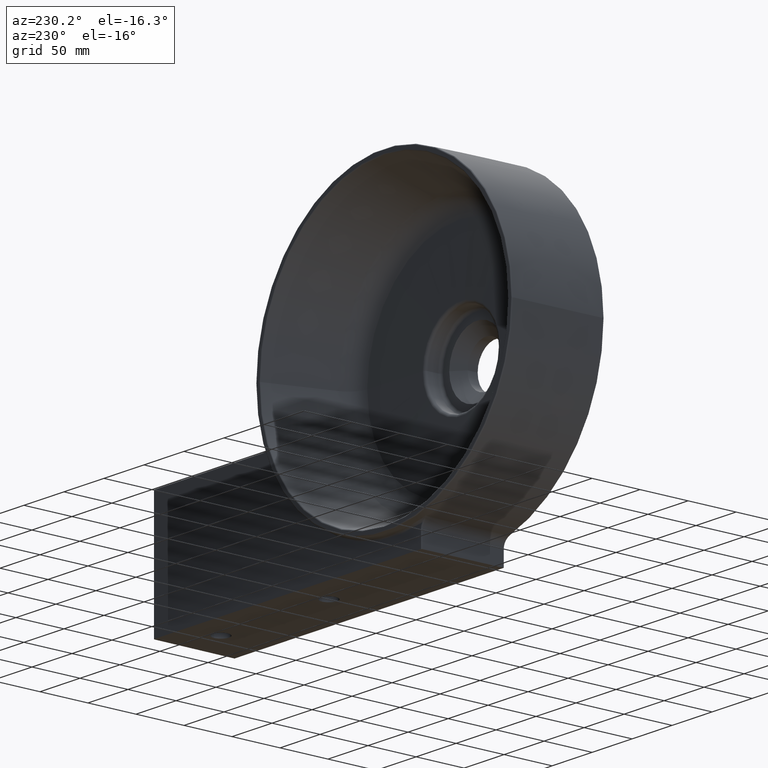
[diagram: clean part render]
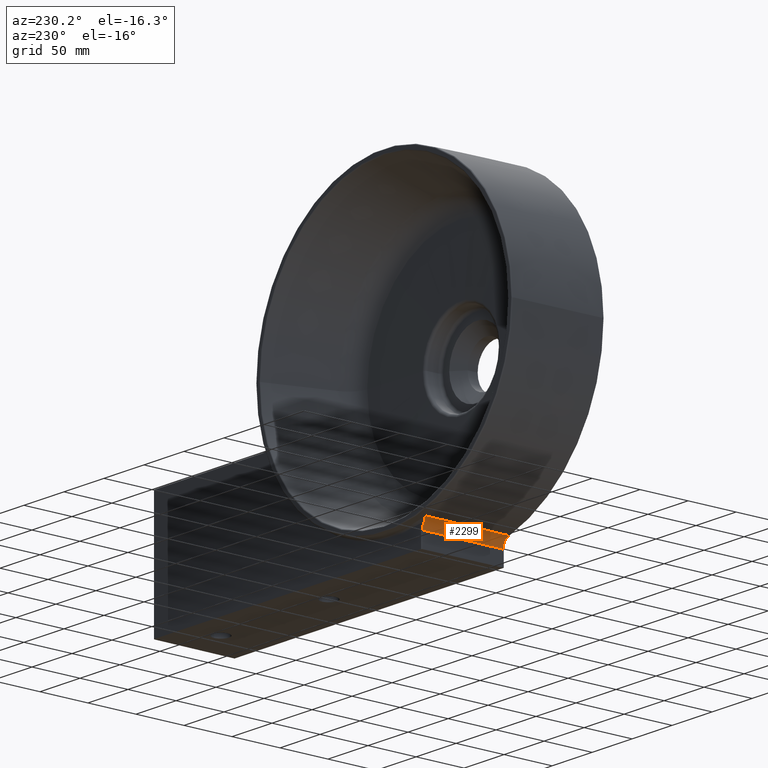
[diagram: same view with one face highlighted and labeled with its STEP entity id]
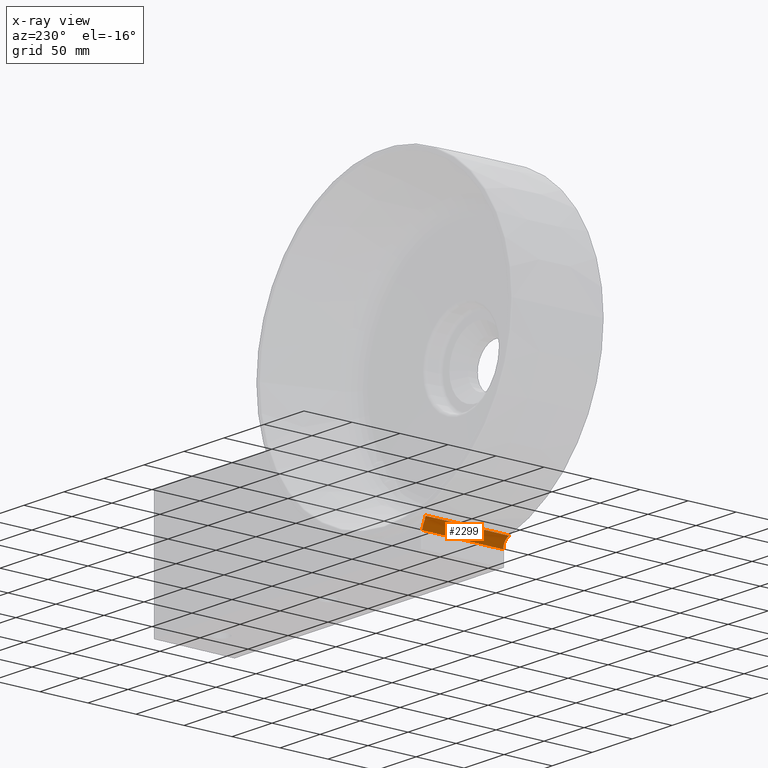
[diagram: x-ray of the same camera — body ghosted, the highlighted face saturated]
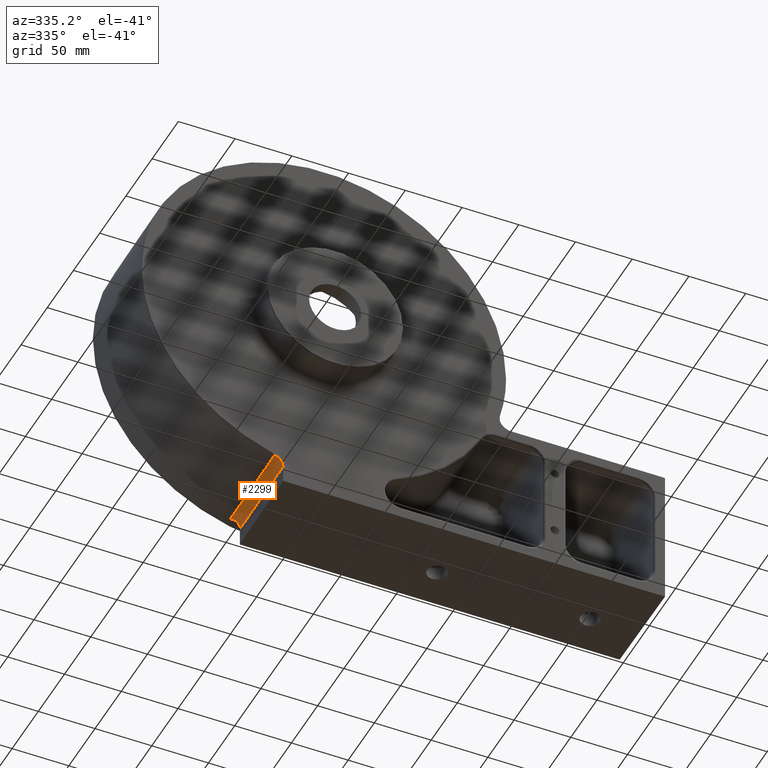
[diagram: same view with one face highlighted and labeled with its STEP entity id]
A machine part, auxiliary view. The second image highlights one B-rep face of the part: STEP entity #2299.
The next image is the same camera in x-ray: the body ghosted, the highlighted face saturated — about 0% of this face is hidden behind the body in this view.
A second angle (auxiliary view) of the same face is appended — the face is thin or edge-on in the first view.
In plain terms, the highlighted face is a freeform B-spline surface patch.
Its self-contained STEP definition (entity closure, byte-faithful):
#117 = CARTESIAN_POINT ( 'NONE',  ( -34.97817047336204155, 109.3008069631592463, -164.0005494587681767 ) ) ;
#175 = CARTESIAN_POINT ( 'NONE',  ( -42.87444206336256514, 44.46353439593922730, -154.7947858642535550 ) ) ;
#366 = CARTESIAN_POINT ( 'NONE',  ( -36.78456986317082311, 105.8103598929374414, -158.3248963485769139 ) ) ;
#383 = CARTESIAN_POINT ( 'NONE',  ( -35.73782206330182731, 22.25335670337503657, -156.9792501386635024 ) ) ;
#428 = CARTESIAN_POINT ( 'NONE',  ( -42.57514108303320199, 80.30179165611281178, -154.5530370409089755 ) ) ;
#441 = CARTESIAN_POINT ( 'NONE',  ( -42.33734794164194426, 108.7819379017567201, -154.3605325915483206 ) ) ;
#452 = CARTESIAN_POINT ( 'NONE',  ( -42.33301567261197818, 109.3008069631593315, -154.3570254617692115 ) ) ;
#479 = CARTESIAN_POINT ( 'NONE',  ( -42.68937438647490268, 66.62331348628256933, -154.6453173011169326 ) ) ;
#540 = ORIENTED_EDGE ( 'NONE', *, *, #756, .F. ) ;
#556 = CARTESIAN_POINT ( 'NONE',  ( -42.06326360140933929, 108.6124516774507640, -154.4372409831999846 ) ) ;
#604 = CARTESIAN_POINT ( 'NONE',  ( -35.49447171987617367, 50.13854406502467498, -164.3939499997256064 ) ) ;
#728 = CARTESIAN_POINT ( 'NONE',  ( -42.81731537663141296, 51.30277407393342770, -154.7487145481274524 ) ) ;
#756 = EDGE_CURVE ( 'NONE', #1230, #3044, #2183, .T. ) ;
#896 = B_SPLINE_CURVE_WITH_KNOTS ( 'NONE', 3,
 ( #3853, #1916, #1634, #2884, #1002, #3795, #1961, #981, #1582, #3156 ),
 .UNSPECIFIED., .F., .F.,
 ( 4, 2, 2, 2, 4 ),
 ( 0.0000000000000000000, 0.001428692405881586440, 0.002857384811763172879, 0.004286077217644759102, 0.005714769623526345758 ),
 .UNSPECIFIED. ) ;
#917 = CARTESIAN_POINT ( 'NONE',  ( -35.73738225065834229, 22.30375424050174615, -164.5785603973745594 ) ) ;
#928 = ORIENTED_EDGE ( 'NONE', *, *, #2881, .F. ) ;
#981 = CARTESIAN_POINT ( 'NONE',  ( -35.04333116067208920, 105.8087248757224188, -163.0655181833680274 ) ) ;
#997 = CARTESIAN_POINT ( 'NONE',  ( -35.23124104600864115, 80.30179165613371595, -164.1935592867732794 ) ) ;
#1002 = CARTESIAN_POINT ( 'NONE',  ( -35.54886515321889107, 105.8098267347751289, -160.7466239143528242 ) ) ;
#1047 = ORIENTED_EDGE ( 'NONE', *, *, #2059, .T. ) ;
#1079 = CARTESIAN_POINT ( 'NONE',  ( -42.44867017761611550, 95.44937373072748699, -154.4506312328651347 ) ) ;
#1098 = CARTESIAN_POINT ( 'NONE',  ( -45.73700148130004806, 22.39101959548549203, -164.5785603973745310 ) ) ;
#1199 = EDGE_CURVE ( 'NONE', #3291, #1831, #3556, .T. ) ;
#1230 = VERTEX_POINT ( 'NONE', #1849 ) ;
#1284 = EDGE_LOOP ( 'NONE', ( #540, #1047, #3368, #2465, #928 ) ) ;
#1378 = CARTESIAN_POINT ( 'NONE',  ( -34.97861339152225923, 109.2500535690625725, -156.3744582164801784 ) ) ;
#1440 = CARTESIAN_POINT ( 'NONE',  ( -43.05953790363872713, 22.30375424050182787, -154.9440612641493544 ) ) ;
#1520 = CARTESIAN_POINT ( 'NONE',  ( -41.25469435271084961, 108.1057935947167437, -154.7275797981760093 ) ) ;
#1580 = CARTESIAN_POINT ( 'NONE',  ( -37.38229266956683006, 105.9545746354741311, -157.5449066424794182 ) ) ;
#1582 = CARTESIAN_POINT ( 'NONE',  ( -35.00864792788315327, 105.8084365902086859, -163.5442575244578620 ) ) ;
#1615 = CARTESIAN_POINT ( 'NONE',  ( -36.97710375397750937, 105.8433133704361921, -158.0565923567228026 ) ) ;
#1617 = CARTESIAN_POINT ( 'NONE',  ( -35.00865071246920479, 105.8081175082510299, -164.0237942346884950 ) ) ;
#1634 = CARTESIAN_POINT ( 'NONE',  ( -36.11386201882148583, 105.8102102971107996, -159.4292619568583689 ) ) ;
#1649 = CARTESIAN_POINT ( 'NONE',  ( -35.48431163851033432, 51.30277407394054023, -164.3862284055785778 ) ) ;
#1671 = CARTESIAN_POINT ( 'NONE',  ( -43.05953790363873424, 22.30375424050182787, -154.9440612641493544 ) ) ;
#1727 = B_SPLINE_CURVE_WITH_KNOTS ( 'NONE', 3,
 ( #2120, #556, #1821, #1520, #1938, #3193, #3470, #1898, #3830, #3154, #1580, #1615, #366, #4084 ),
 .UNSPECIFIED., .F., .F.,
 ( 4, 2, 2, 2, 2, 2, 4 ),
 ( -1.928415136391667750E-05, 0.0009744901388965044892, 0.001968264429156925659, 0.003955813009677761928, 0.005943361590198599498, 0.006937135880459010043, 0.007930910170719422322 ),
 .UNSPECIFIED. ) ;
#1776 = EDGE_CURVE ( 'NONE', #3688, #1831, #896, .T. ) ;
#1821 = CARTESIAN_POINT ( 'NONE',  ( -41.79000517538840143, 108.4415684509560123, -154.5265600558129222 ) ) ;
#1831 = VERTEX_POINT ( 'NONE', #1617 ) ;
#1842 = CARTESIAN_POINT ( 'NONE',  ( -43.05953790363872713, 22.30375424050182787, -154.9440612641493544 ) ) ;
#1849 = CARTESIAN_POINT ( 'NONE',  ( -42.33734794164194426, 108.7819379017567201, -154.3605325915483206 ) ) ;
#1898 = CARTESIAN_POINT ( 'NONE',  ( -38.72615686677245606, 106.5715992519598529, -156.2103475595262125 ) ) ;
#1916 = CARTESIAN_POINT ( 'NONE',  ( -36.34254147255855116, 105.8102890880982443, -159.0109671531263587 ) ) ;
#1938 = CARTESIAN_POINT ( 'NONE',  ( -40.99088294197302673, 107.9398007660776670, -154.8397669254214293 ) ) ;
#1961 = CARTESIAN_POINT ( 'NONE',  ( -35.17908322603751259, 105.8092322634866065, -162.1249577934193269 ) ) ;
#2039 = CARTESIAN_POINT ( 'NONE',  ( -42.50433516190589245, 88.78309149889236096, -154.4956541137780164 ) ) ;
#2059 = EDGE_CURVE ( 'NONE', #1230, #3688, #1727, .T. ) ;
#2078 = CARTESIAN_POINT ( 'NONE',  ( -35.73738225065834229, 22.30375424050174615, -164.5785603973745594 ) ) ;
#2120 = CARTESIAN_POINT ( 'NONE',  ( -42.33734794164194426, 108.7819379017567201, -154.3605325915483206 ) ) ;
#2176 = CARTESIAN_POINT ( 'NONE',  ( -35.00865071246920479, 105.8081175082510299, -164.0237942346884950 ) ) ;
#2183 = B_SPLINE_CURVE_WITH_KNOTS ( 'NONE', 3,
 ( #441, #2997, #1079, #2039, #479, #175, #1440 ),
 .UNSPECIFIED., .F., .F.,
 ( 4, 3, 4 ),
 ( 2.775557561562891351E-17, 0.02000000000007151266, 0.08648316780731921116 ),
 .UNSPECIFIED. ) ;
#2299 = ADVANCED_FACE ( 'NONE', ( #2920 ), #3340, .F. ) ;
#2465 = ORIENTED_EDGE ( 'NONE', *, *, #1199, .F. ) ;
#2684 = CARTESIAN_POINT ( 'NONE',  ( -35.48464416659616205, 51.26467009875702274, -156.7779520022562281 ) ) ;
#2881 = EDGE_CURVE ( 'NONE', #3044, #3291, #3250, .T. ) ;
#2884 = CARTESIAN_POINT ( 'NONE',  ( -35.71737193866101023, 105.8099797951367407, -160.2956199086225126 ) ) ;
#2920 = FACE_OUTER_BOUND ( 'NONE', #1284, .T. ) ;
#2992 = DIRECTION ( 'NONE',  ( 0.008726343586924856927, 0.9999399321901887294, 0.006631963441090510739 ) ) ;
#2997 = CARTESIAN_POINT ( 'NONE',  ( -42.39300776821617234, 102.1156558651314583, -154.4055907388219282 ) ) ;
#3044 = VERTEX_POINT ( 'NONE', #1842 ) ;
#3154 = CARTESIAN_POINT ( 'NONE',  ( -37.59555342693103341, 106.0334321785384759, -157.3009486264955115 ) ) ;
#3156 = CARTESIAN_POINT ( 'NONE',  ( -35.00865071246920479, 105.8081175082510299, -164.0237942346884950 ) ) ;
#3187 = AXIS2_PLACEMENT_3D ( 'NONE', #1098, #2992, #3942 ) ;
#3193 = CARTESIAN_POINT ( 'NONE',  ( -40.20949218918405421, 107.4510529300411292, -155.2130385539687722 ) ) ;
#3250 = CIRCLE ( 'NONE', #3187, 10.00000000000000178 ) ;
#3257 = CARTESIAN_POINT ( 'NONE',  ( -35.23157345182573152, 80.26370170079587751, -156.5763549128056127 ) ) ;
#3291 = VERTEX_POINT ( 'NONE', #2078 ) ;
#3340 =( BOUNDED_SURFACE ( )  B_SPLINE_SURFACE ( 3, 2, ( 
 ( #3525, #383, #1671 ),
 ( #1649, #2684, #728 ),
 ( #997, #3257, #428 ),
 ( #117, #1378, #452 ) ),
 .UNSPECIFIED., .F., .F., .F. ) 
 B_SPLINE_SURFACE_WITH_KNOTS ( ( 4, 4 ),
 ( 3, 3 ),
 ( 0.0000000000000000000, 0.08700228544546993736 ),
 ( 0.0000000000000000000, 1.000000000000000000 ),
 .UNSPECIFIED. ) 
 GEOMETRIC_REPRESENTATION_ITEM ( )  RATIONAL_B_SPLINE_SURFACE ( (
 ( 1.000000000000000000, 0.7961822389462896998, 1.000000000000000000),
 ( 1.000000000000000000, 0.7958416236935826893, 1.000000000000000000),
 ( 1.000000000000000000, 0.7954992760388452933, 1.000000000000000000),
 ( 1.000000000000000000, 0.7951551688418667663, 1.000000000000000000) ) ) 
 REPRESENTATION_ITEM ( '' )  SURFACE ( )  );
#3368 = ORIENTED_EDGE ( 'NONE', *, *, #1776, .T. ) ;
#3470 = CARTESIAN_POINT ( 'NONE',  ( -39.69866171712794767, 107.1351437092948657, -155.5130442741586876 ) ) ;
#3525 = CARTESIAN_POINT ( 'NONE',  ( -35.73738225065834229, 22.30375424050175326, -164.5785603973745310 ) ) ;
#3556 = B_SPLINE_CURVE_WITH_KNOTS ( 'NONE', 3,
 ( #917, #604, #4033, #2176 ),
 .UNSPECIFIED., .F., .F.,
 ( 4, 4 ),
 ( 0.0000000000000000000, 0.08350938569946569912 ),
 .UNSPECIFIED. ) ;
#3688 = VERTEX_POINT ( 'NONE', #3943 ) ;
#3795 = CARTESIAN_POINT ( 'NONE',  ( -35.28006773073538227, 105.8094527579454365, -161.6611550137821496 ) ) ;
#3830 = CARTESIAN_POINT ( 'NONE',  ( -38.26187727141532235, 106.3208772259168029, -156.6075066521378574 ) ) ;
#3853 = CARTESIAN_POINT ( 'NONE',  ( -36.60226325789943047, 105.8103306907636778, -158.6078538282536670 ) ) ;
#3942 = DIRECTION ( 'NONE',  ( -0.9999619230641713097, 0.008726535498374680608, 0.0000000000000000000 ) ) ;
#3943 = CARTESIAN_POINT ( 'NONE',  ( -36.60226325789943047, 105.8103306907636778, -158.6078538282536670 ) ) ;
#4033 = CARTESIAN_POINT ( 'NONE',  ( -35.25156120705479879, 77.97333183144425561, -164.2090289995211947 ) ) ;
#4084 = CARTESIAN_POINT ( 'NONE',  ( -36.60226325789943047, 105.8103306907636778, -158.6078538282536670 ) ) ;